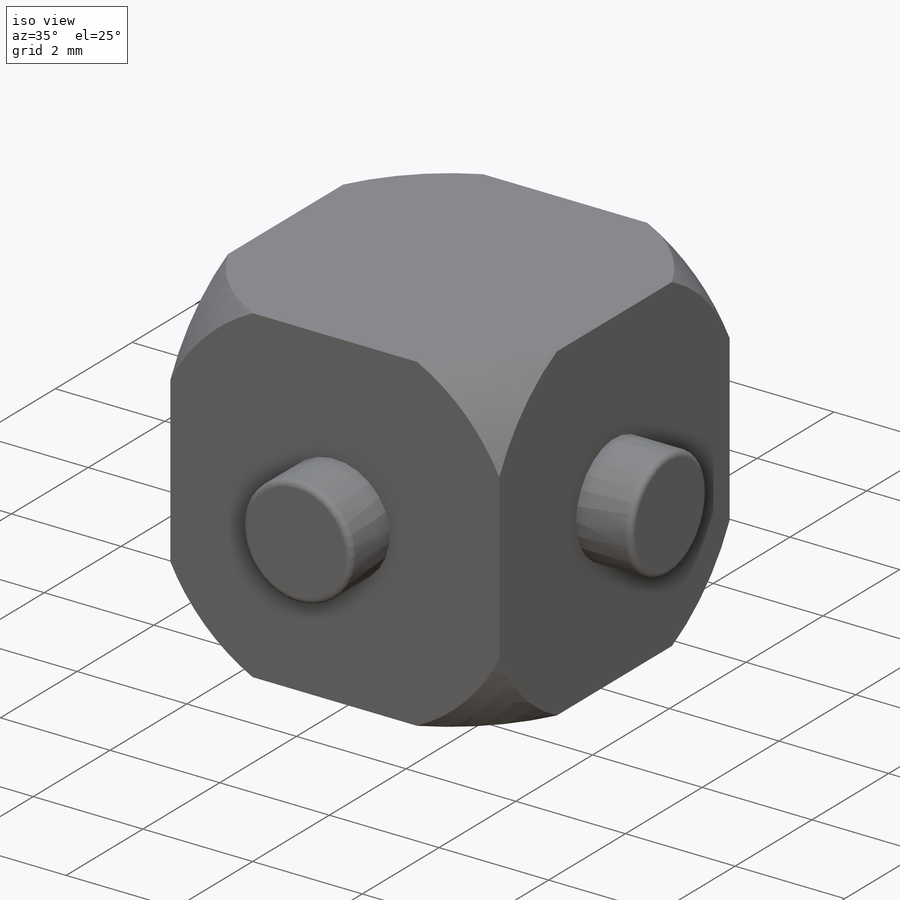
[diagram: iso view]
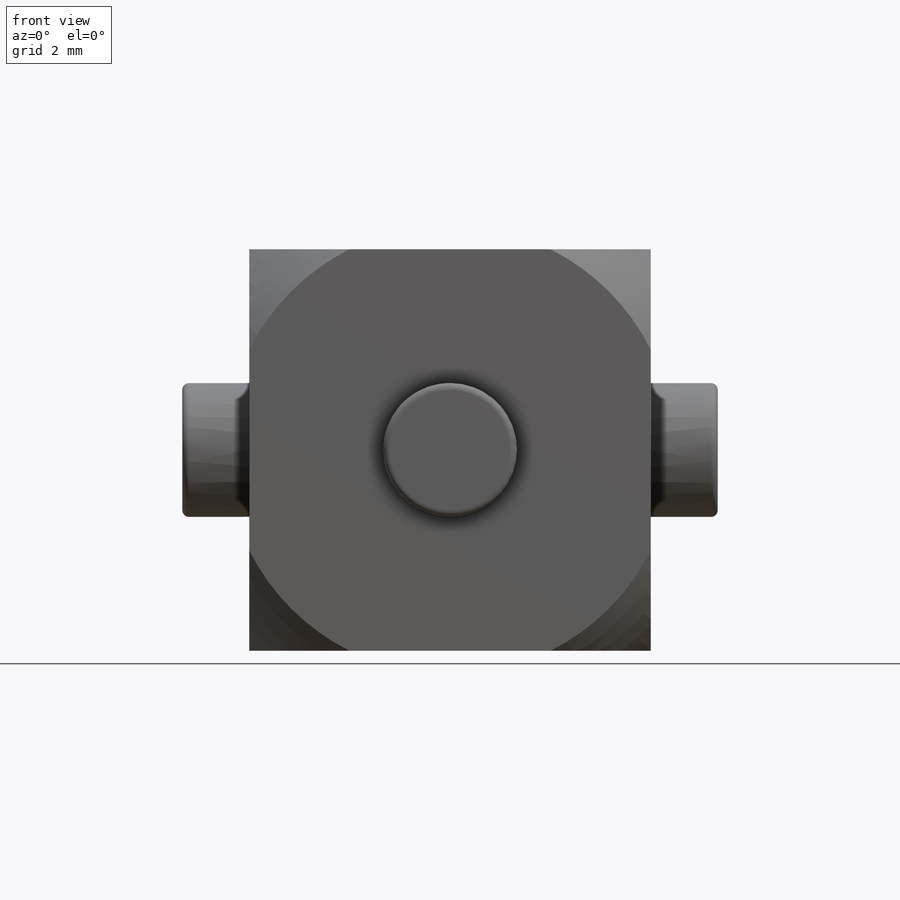
[diagram: front view]
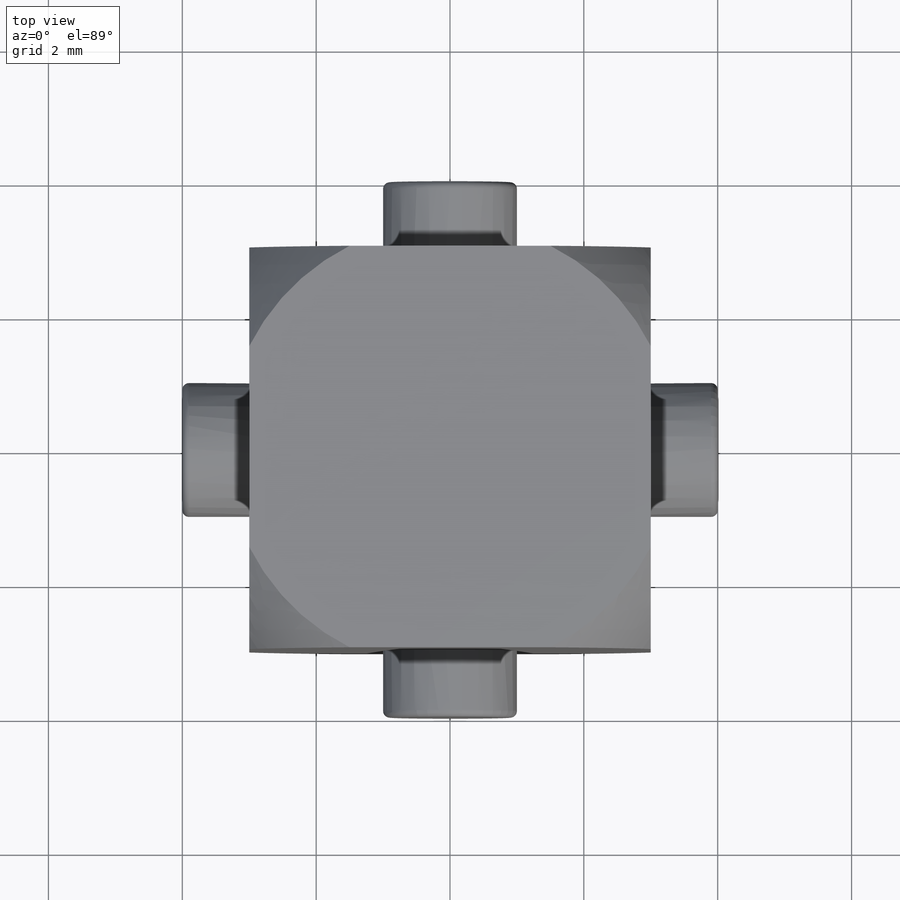
[diagram: top view]
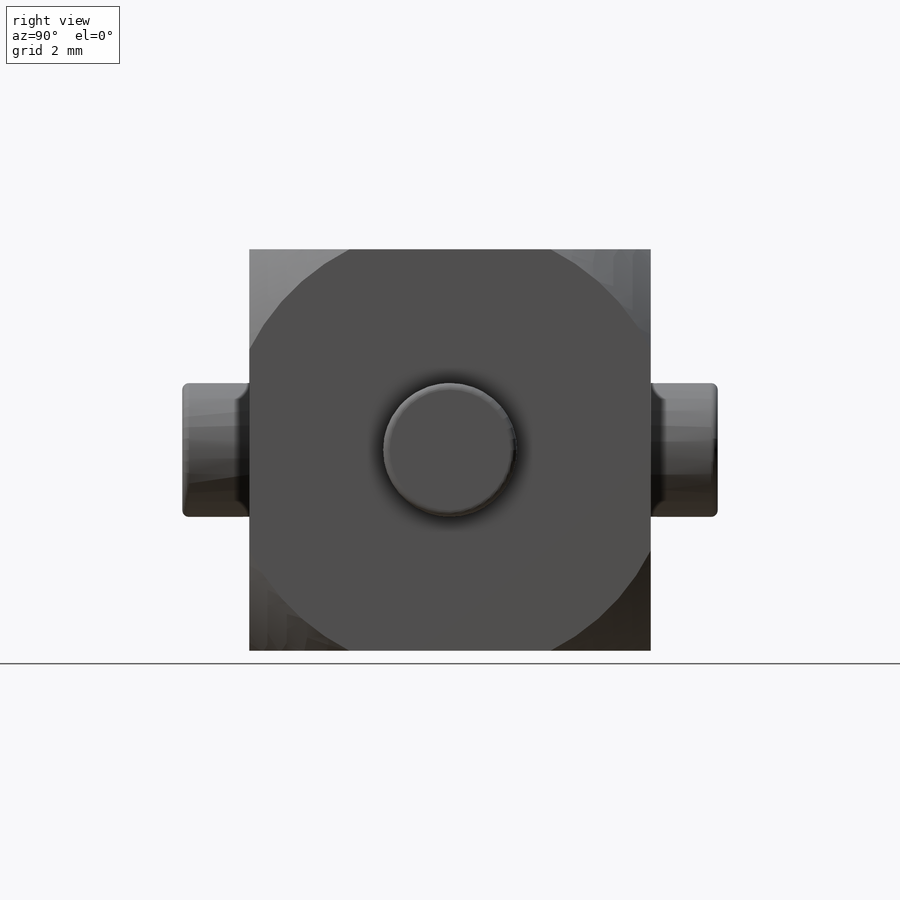
[diagram: right view]
SOLIDWORKS PART (.sldprt)
format: sldprt  version: not decoded by parser v0  size: 233,984 bytes
history: native  units: mm
features: sketch x4, plane x3, extrude x3, material x1, cut_revolve x1, fillet x1 (+8 scaffold rows collapsed)
feature tree (21):
  scaffold x8  (default folders/planes/origin — collapsed)
  material  "不锈钢 (铁素体)"
  plane  "前视基准面"
  plane  "上视基准面"
  plane  "右视基准面"
  sketch  "草图1"  dims[D1=6.0mm D2=6.0mm]
  extrude  "凸台-拉伸1"  Depth=6mm
  sketch  "草图4"  dims[D1=4.5mm D2=7.0mm]
  cut_revolve  "切除-旋转4"  Angle=360deg
  sketch  "草图2"  dims[D1=~0.381211mm]
  extrude  "凸台-拉伸2"  Depth=8mm
  sketch  "草图3"  dims[D1=~0.425498mm]
  extrude  "凸台-拉伸3"  Depth=8mm
  fillet  "圆角1"  Radius=0.1mm
decode coverage: 9 of 9 modeling features carry decoded parameters
note: ~ marks probable driven/reference dimensions
note: suppression state not decoded; provenance and decode notes live in map.json
